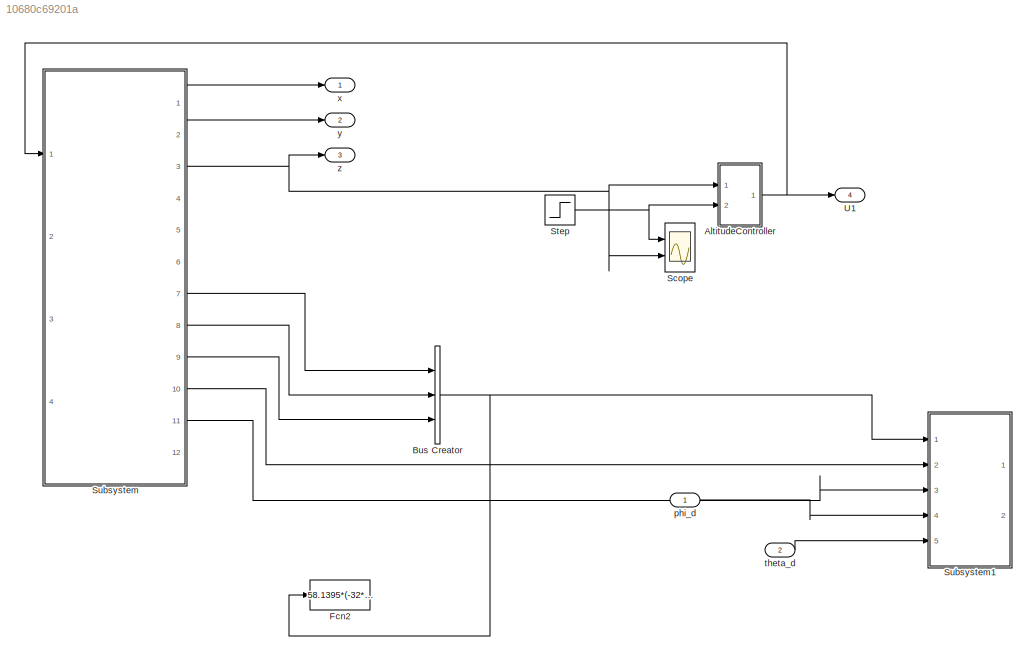
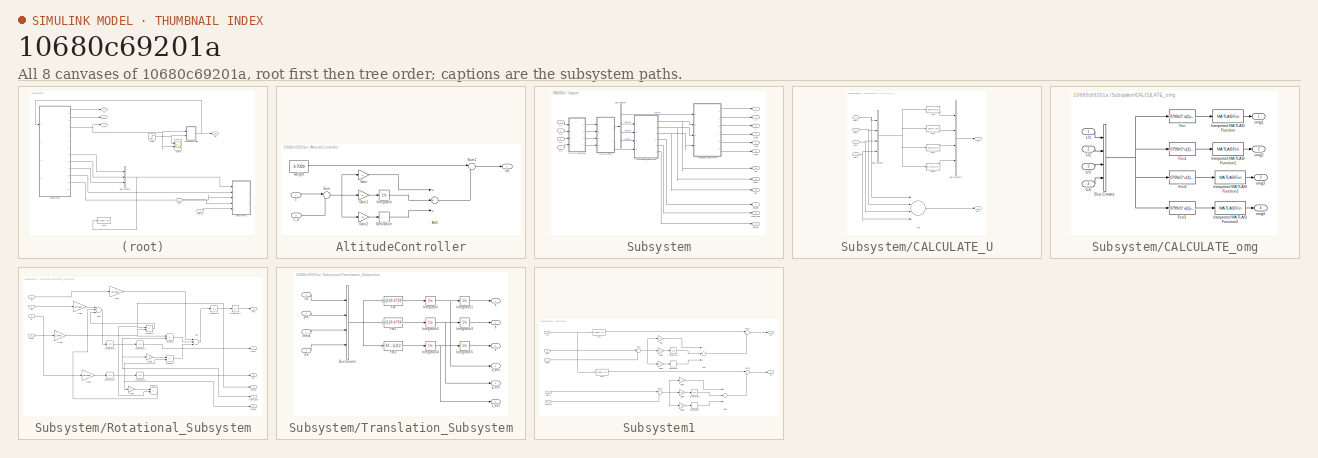
[diagram: thumbnail index - all 8 canvases of the model, root first then tree order]
MODEL slx_10680c69201a
KIND model
CONFIG AbsTol = auto
CONFIG EnableMultiTasking = off
CONFIG FixedStep = 0.0025
CONFIG MaxStep = auto
CONFIG MinStep = auto
CONFIG RelTol = 1e-3
CONFIG SampleTimeConstraint = Unconstrained
CONFIG Solver = FixedStepAuto
CONFIG SolverName = FixedStepAuto
CONFIG StartTime = 0.0
CONFIG StopTime = 10.0
BLOCK [SubSystem] AltitudeController
  Ports = [2, 1]
  RequestExecContextInheritance = off
  Variant = off
BLOCK [Sum] AltitudeController/Add
  InputSameDT = off
  Inputs = +++
  OutDataTypeStr = Inherit: Inherit via internal rule
  Ports = [3, 1]
  SaturateOnIntegerOverflow = off
BLOCK [Derivative] AltitudeController/Derivative
BLOCK [Gain] AltitudeController/Gain
  OutDataTypeStr = Inherit: Inherit via internal rule
  ParamDataTypeStr = Inherit: Inherit via internal rule
  SaturateOnIntegerOverflow = off
BLOCK [Gain] AltitudeController/Gain1
  Gain = 10
  OutDataTypeStr = Inherit: Inherit via internal rule
  ParamDataTypeStr = Inherit: Inherit via internal rule
  SaturateOnIntegerOverflow = off
BLOCK [Gain] AltitudeController/Gain2
  Gain = 10
  OutDataTypeStr = Inherit: Inherit via internal rule
  ParamDataTypeStr = Inherit: Inherit via internal rule
  SaturateOnIntegerOverflow = off
BLOCK [Integrator] AltitudeController/Integrator
  Ports = [1, 1]
BLOCK [Sum] AltitudeController/Sum
  IconShape = round
  InputSameDT = off
  Inputs = |+-
  OutDataTypeStr = Inherit: Inherit via internal rule
  Ports = [2, 1]
  SaturateOnIntegerOverflow = off
BLOCK [Sum] AltitudeController/Sum1
  IconShape = round
  InputSameDT = off
  Inputs = |++
  OutDataTypeStr = Inherit: Inherit via internal rule
  Ports = [2, 1]
  SaturateOnIntegerOverflow = off
BLOCK [Outport] AltitudeController/U1
  IconDisplay = Port number
BLOCK [Constant] AltitudeController/weight
  Value = 4.7029
BLOCK [Inport] AltitudeController/z
  IconDisplay = Port number
BLOCK [Inport] AltitudeController/z_d
  IconDisplay = Port number
  Port = 2
BLOCK [BusCreator] Bus Creator
  DisplayOption = bar
  InheritFromInputs = on
  Inputs = 3
  Ports = [3, 1]
BLOCK [Fcn] Fcn2
  Expr = 58.1395*(-32*u(3))
BLOCK [Scope] Scope
  NumInputPorts = 2
  Ports = [2]
  ScopeSpecificationString = Simulink.scopes.TimeScopeBlockCfg('CurrentConfiguration', extmgr.ConfigurationSet(extmgr.Configuration('Core','General UI',true),extmgr.Configuration('Core','Source UI',true),extmgr.Configuration('Sources','WiredSimulink',true),extmgr.Configuration('Visuals','Time Domain',true,'SerializedDisplays',{struct('MinYLimReal','-0.2406','MaxYLimReal','2.16408','YLabelReal','','MinYLimMag','0.00000','MaxYL...<+1392ch>
BLOCK [Step] Step
  SampleTime = 0
BLOCK [SubSystem] Subsystem
  Ports = [4, 12]
  RequestExecContextInheritance = off
  Variant = off
BLOCK [BusSelector] Subsystem/Bus Selector
  OutputAsBus = off
  OutputSignals = signal1,signal2,signal3,signal4
  Ports = [1, 4]
BLOCK [SubSystem] Subsystem/CALCULATE_U
  Ports = [4, 2]
  RequestExecContextInheritance = off
  Variant = off
BLOCK [Sum] Subsystem/CALCULATE_U/Add
  InputSameDT = off
  Inputs = -+-+
  OutDataTypeStr = Inherit: Inherit via internal rule
  Ports = [4, 1]
  SaturateOnIntegerOverflow = off
BLOCK [BusCreator] Subsystem/CALCULATE_U/Bus Creator
  DisplayOption = bar
  InheritFromInputs = on
  Inputs = 4
  Ports = [4, 1]
BLOCK [BusCreator] Subsystem/CALCULATE_U/Bus Creator1
  DisplayOption = bar
  InheritFromInputs = on
  Inputs = 4
  Ports = [4, 1]
BLOCK [Fcn] Subsystem/CALCULATE_U/Fcn
  Expr = 3.13e-5*(u(1)^2+u(2)^2+u(3)^2+u(4)^2)
BLOCK [Fcn] Subsystem/CALCULATE_U/Fcn1
  Expr = 3.13e-5*(-u(2)^2+u(4)^2)
BLOCK [Fcn] Subsystem/CALCULATE_U/Fcn2
  Expr = 3.13e-5*(u(1)^2-u(3)^2)
BLOCK [Fcn] Subsystem/CALCULATE_U/Fcn3
  Expr = 9e-7*(u(1)^2-u(2)^2+u(3)^2-u(4)^2)
BLOCK [Outport] Subsystem/CALCULATE_U/U
  IconDisplay = Port number
BLOCK [Inport] Subsystem/CALCULATE_U/om1
  IconDisplay = Port number
BLOCK [Inport] Subsystem/CALCULATE_U/om2
  IconDisplay = Port number
  Port = 2
BLOCK [Inport] Subsystem/CALCULATE_U/om3
  IconDisplay = Port number
  Port = 3
BLOCK [Inport] Subsystem/CALCULATE_U/om4
  IconDisplay = Port number
  Port = 4
BLOCK [Outport] Subsystem/CALCULATE_U/omr
  IconDisplay = Port number
  Port = 2
BLOCK [SubSystem] Subsystem/CALCULATE_omg
  Ports = [4, 4]
  RequestExecContextInheritance = off
  Variant = off
BLOCK [BusCreator] Subsystem/CALCULATE_omg/Bus Creator
  DisplayOption = bar
  InheritFromInputs = on
  Inputs = 4
  Ports = [4, 1]
BLOCK [Fcn] Subsystem/CALCULATE_omg/Fcn
  Expr = .0799e5*u(1)+.1597e5*u(3)+2.7778e5*u(4)
BLOCK [Fcn] Subsystem/CALCULATE_omg/Fcn1
  Expr = .0799e5*u(1)-.1597e5*u(2)-2.7778e5*u(4)
BLOCK [Fcn] Subsystem/CALCULATE_omg/Fcn2
  Expr = .0799e5*u(1)-.1597e5*u(3)+2.7778e5*u(4)
BLOCK [Fcn] Subsystem/CALCULATE_omg/Fcn3
  Expr = .0799e5*u(1)+.1597e5*u(2)-2.7778e5*u(4)
BLOCK [MATLABFcn] Subsystem/CALCULATE_omg/Interpreted MATLAB Function
  MATLABFcn = cond_sqrt
  Ports = [1, 1]
BLOCK [MATLABFcn] Subsystem/CALCULATE_omg/Interpreted MATLAB Function1
  MATLABFcn = cond_sqrt
  Ports = [1, 1]
BLOCK [MATLABFcn] Subsystem/CALCULATE_omg/Interpreted MATLAB Function2
  MATLABFcn = cond_sqrt
  Ports = [1, 1]
BLOCK [MATLABFcn] Subsystem/CALCULATE_omg/Interpreted MATLAB Function3
  MATLABFcn = cond_sqrt
  Ports = [1, 1]
BLOCK [Inport] Subsystem/CALCULATE_omg/U1
  IconDisplay = Port number
BLOCK [Inport] Subsystem/CALCULATE_omg/U2
  IconDisplay = Port number
  Port = 2
BLOCK [Inport] Subsystem/CALCULATE_omg/U3
  IconDisplay = Port number
  Port = 3
BLOCK [Inport] Subsystem/CALCULATE_omg/U4
  IconDisplay = Port number
  Port = 4
BLOCK [Outport] Subsystem/CALCULATE_omg/omg1
  IconDisplay = Port number
BLOCK [Outport] Subsystem/CALCULATE_omg/omg2
  IconDisplay = Port number
  Port = 2
BLOCK [Outport] Subsystem/CALCULATE_omg/omg3
  IconDisplay = Port number
  Port = 3
BLOCK [Outport] Subsystem/CALCULATE_omg/omg4
  IconDisplay = Port number
  Port = 4
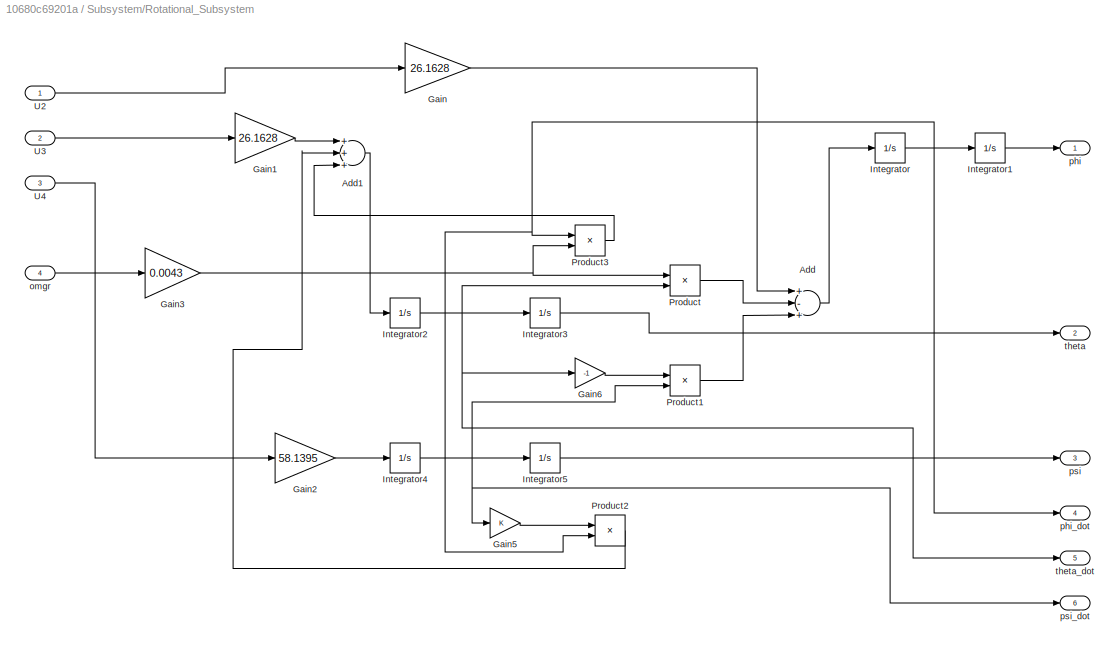
BLOCK [SubSystem] Subsystem/Rotational_Subsystem
  Ports = [4, 6]
  RequestExecContextInheritance = off
  Variant = off
BLOCK [Sum] Subsystem/Rotational_Subsystem/Add
  InputSameDT = off
  Inputs = +-+
  OutDataTypeStr = Inherit: Inherit via internal rule
  Ports = [3, 1]
  SaturateOnIntegerOverflow = off
BLOCK [Sum] Subsystem/Rotational_Subsystem/Add1
  InputSameDT = off
  Inputs = +++
  OutDataTypeStr = Inherit: Inherit via internal rule
  Ports = [3, 1]
  SaturateOnIntegerOverflow = off
BLOCK [Gain] Subsystem/Rotational_Subsystem/Gain
  Gain = 26.1628
  OutDataTypeStr = Inherit: Inherit via internal rule
  ParamDataTypeStr = Inherit: Inherit via internal rule
  SaturateOnIntegerOverflow = off
BLOCK [Gain] Subsystem/Rotational_Subsystem/Gain1
  Gain = 26.1628
  OutDataTypeStr = Inherit: Inherit via internal rule
  ParamDataTypeStr = Inherit: Inherit via internal rule
  SaturateOnIntegerOverflow = off
BLOCK [Gain] Subsystem/Rotational_Subsystem/Gain2
  Gain = 58.1395
  OutDataTypeStr = Inherit: Inherit via internal rule
  ParamDataTypeStr = Inherit: Inherit via internal rule
  SaturateOnIntegerOverflow = off
BLOCK [Gain] Subsystem/Rotational_Subsystem/Gain3
  Gain = 0.0043
  OutDataTypeStr = Inherit: Inherit via internal rule
  ParamDataTypeStr = Inherit: Inherit via internal rule
  SaturateOnIntegerOverflow = off
BLOCK [Gain] Subsystem/Rotational_Subsystem/Gain5
  OutDataTypeStr = Inherit: Inherit via internal rule
  ParamDataTypeStr = Inherit: Inherit via internal rule
  SaturateOnIntegerOverflow = off
BLOCK [Gain] Subsystem/Rotational_Subsystem/Gain6
  Gain = -1
  OutDataTypeStr = Inherit: Inherit via internal rule
  ParamDataTypeStr = Inherit: Inherit via internal rule
  SaturateOnIntegerOverflow = off
BLOCK [Integrator] Subsystem/Rotational_Subsystem/Integrator
  Ports = [1, 1]
BLOCK [Integrator] Subsystem/Rotational_Subsystem/Integrator1
  Ports = [1, 1]
BLOCK [Integrator] Subsystem/Rotational_Subsystem/Integrator2
  Ports = [1, 1]
BLOCK [Integrator] Subsystem/Rotational_Subsystem/Integrator3
  Ports = [1, 1]
BLOCK [Integrator] Subsystem/Rotational_Subsystem/Integrator4
  Ports = [1, 1]
BLOCK [Integrator] Subsystem/Rotational_Subsystem/Integrator5
  Ports = [1, 1]
BLOCK [Product] Subsystem/Rotational_Subsystem/Product
  InputSameDT = off
  OutDataTypeStr = Inherit: Inherit via internal rule
  Ports = [2, 1]
  RndMeth = Floor
  SaturateOnIntegerOverflow = off
BLOCK [Product] Subsystem/Rotational_Subsystem/Product1
  InputSameDT = off
  OutDataTypeStr = Inherit: Inherit via internal rule
  Ports = [2, 1]
  RndMeth = Floor
  SaturateOnIntegerOverflow = off
BLOCK [Product] Subsystem/Rotational_Subsystem/Product2
  InputSameDT = off
  OutDataTypeStr = Inherit: Inherit via internal rule
  Ports = [2, 1]
  RndMeth = Floor
  SaturateOnIntegerOverflow = off
BLOCK [Product] Subsystem/Rotational_Subsystem/Product3
  InputSameDT = off
  OutDataTypeStr = Inherit: Inherit via internal rule
  Ports = [2, 1]
  RndMeth = Floor
  SaturateOnIntegerOverflow = off
BLOCK [Inport] Subsystem/Rotational_Subsystem/U2
  IconDisplay = Port number
BLOCK [Inport] Subsystem/Rotational_Subsystem/U3
  IconDisplay = Port number
  Port = 2
BLOCK [Inport] Subsystem/Rotational_Subsystem/U4
  IconDisplay = Port number
  Port = 3
BLOCK [Inport] Subsystem/Rotational_Subsystem/omgr
  IconDisplay = Port number
  Port = 4
BLOCK [Outport] Subsystem/Rotational_Subsystem/phi
  IconDisplay = Port number
BLOCK [Outport] Subsystem/Rotational_Subsystem/phi_dot
  IconDisplay = Port number
  Port = 4
BLOCK [Outport] Subsystem/Rotational_Subsystem/psi
  IconDisplay = Port number
  Port = 3
BLOCK [Outport] Subsystem/Rotational_Subsystem/psi_dot
  IconDisplay = Port number
  Port = 6
BLOCK [Outport] Subsystem/Rotational_Subsystem/theta
  IconDisplay = Port number
  Port = 2
BLOCK [Outport] Subsystem/Rotational_Subsystem/theta_dot
  IconDisplay = Port number
  Port = 5
BLOCK [SubSystem] Subsystem/Translation_Subsystem
  Ports = [4, 6]
  RequestExecContextInheritance = off
  Variant = off
BLOCK [BusCreator] Subsystem/Translation_Subsystem/Bus Creator
  DisplayOption = bar
  InheritFromInputs = on
  Inputs = 4
  Ports = [4, 1]
BLOCK [Fcn] Subsystem/Translation_Subsystem/Fcn
  Expr = (-u(1)/0.4794)*(cos(u(2))*sin(u(3))*cos(u(4)) + sin(u(2))*sin(u(4)))
BLOCK [Fcn] Subsystem/Translation_Subsystem/Fcn1
  Expr = (-u(1)/0.4794)*(cos(u(2))*sin(u(3))*sin(u(4)) - sin(u(2))*cos(u(4)))
BLOCK [Fcn] Subsystem/Translation_Subsystem/Fcn2
  Expr = 9.81 - (u(1)/0.4794)*(cos(u(2))*cos(u(3)))
BLOCK [Integrator] Subsystem/Translation_Subsystem/Integrator
  Ports = [1, 1]
BLOCK [Integrator] Subsystem/Translation_Subsystem/Integrator1
  Ports = [1, 1]
BLOCK [Integrator] Subsystem/Translation_Subsystem/Integrator2
  Ports = [1, 1]
BLOCK [Integrator] Subsystem/Translation_Subsystem/Integrator3
  Ports = [1, 1]
BLOCK [Integrator] Subsystem/Translation_Subsystem/Integrator4
  Ports = [1, 1]
BLOCK [Integrator] Subsystem/Translation_Subsystem/Integrator5
  Ports = [1, 1]
BLOCK [Inport] Subsystem/Translation_Subsystem/U1
  IconDisplay = Port number
BLOCK [Inport] Subsystem/Translation_Subsystem/phi
  IconDisplay = Port number
  Port = 2
BLOCK [Inport] Subsystem/Translation_Subsystem/psi
  IconDisplay = Port number
  Port = 4
BLOCK [Inport] Subsystem/Translation_Subsystem/theta
  IconDisplay = Port number
  Port = 3
BLOCK [Outport] Subsystem/Translation_Subsystem/x
  IconDisplay = Port number
BLOCK [Outport] Subsystem/Translation_Subsystem/x_dot
  IconDisplay = Port number
  Port = 4
BLOCK [Outport] Subsystem/Translation_Subsystem/y
  IconDisplay = Port number
  Port = 2
BLOCK [Outport] Subsystem/Translation_Subsystem/y_dot
  IconDisplay = Port number
  Port = 5
BLOCK [Outport] Subsystem/Translation_Subsystem/z
  IconDisplay = Port number
  Port = 3
BLOCK [Outport] Subsystem/Translation_Subsystem/z_dot
  IconDisplay = Port number
  Port = 6
BLOCK [Inport] Subsystem/U1
  IconDisplay = Port number
BLOCK [Inport] Subsystem/U2
  IconDisplay = Port number
  Port = 2
BLOCK [Inport] Subsystem/U3
  IconDisplay = Port number
  Port = 3
BLOCK [Inport] Subsystem/U4
  IconDisplay = Port number
  Port = 4
BLOCK [Outport] Subsystem/phi
  IconDisplay = Port number
  Port = 10
BLOCK [Outport] Subsystem/phi_dot
  IconDisplay = Port number
  Port = 7
BLOCK [Outport] Subsystem/psi
  IconDisplay = Port number
  Port = 12
BLOCK [Outport] Subsystem/psi_dot
  IconDisplay = Port number
  Port = 9
BLOCK [Outport] Subsystem/theta
  IconDisplay = Port number
  Port = 11
BLOCK [Outport] Subsystem/theta_dot
  IconDisplay = Port number
  Port = 8
BLOCK [Outport] Subsystem/x
  IconDisplay = Port number
BLOCK [Outport] Subsystem/x_dot
  IconDisplay = Port number
  Port = 4
BLOCK [Outport] Subsystem/y
  IconDisplay = Port number
  Port = 2
BLOCK [Outport] Subsystem/y_dot
  IconDisplay = Port number
  Port = 5
BLOCK [Outport] Subsystem/z
  IconDisplay = Port number
  Port = 3
BLOCK [Outport] Subsystem/z_dot
  IconDisplay = Port number
  Port = 6
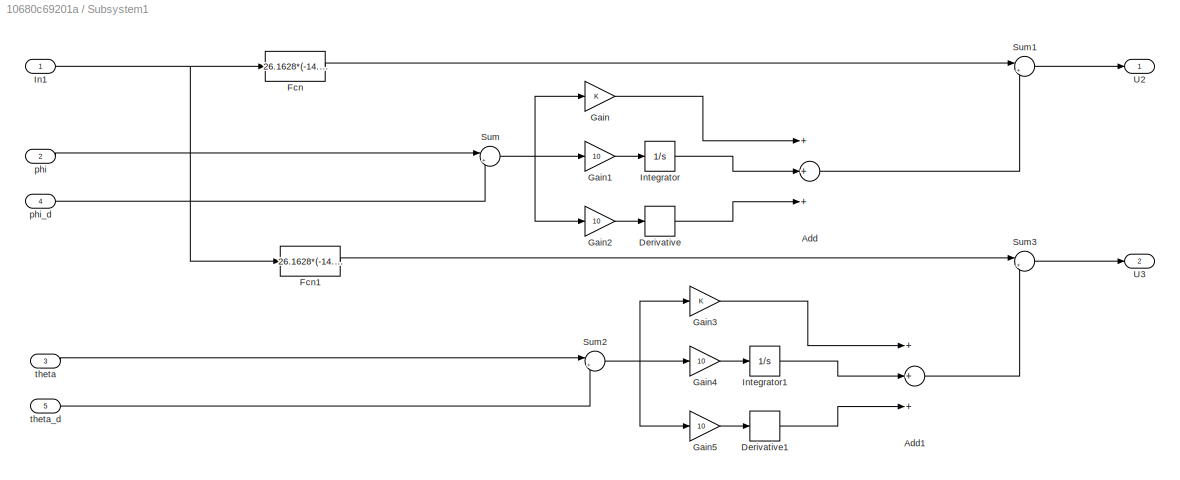
BLOCK [SubSystem] Subsystem1
  Ports = [5, 2]
  RequestExecContextInheritance = off
  Variant = off
BLOCK [Sum] Subsystem1/Add
  InputSameDT = off
  Inputs = +++
  OutDataTypeStr = Inherit: Inherit via internal rule
  Ports = [3, 1]
  SaturateOnIntegerOverflow = off
BLOCK [Sum] Subsystem1/Add1
  InputSameDT = off
  Inputs = +++
  OutDataTypeStr = Inherit: Inherit via internal rule
  Ports = [3, 1]
  SaturateOnIntegerOverflow = off
BLOCK [Derivative] Subsystem1/Derivative
BLOCK [Derivative] Subsystem1/Derivative1
BLOCK [Fcn] Subsystem1/Fcn
  Expr = 26.1628*(-14.6211*u(1) + u(2)*u(3))
BLOCK [Fcn] Subsystem1/Fcn1
  Expr = 26.1628*(-14.6211*u(2) - u(1)*u(3))
BLOCK [Gain] Subsystem1/Gain
  OutDataTypeStr = Inherit: Inherit via internal rule
  ParamDataTypeStr = Inherit: Inherit via internal rule
  SaturateOnIntegerOverflow = off
BLOCK [Gain] Subsystem1/Gain1
  Gain = 10
  OutDataTypeStr = Inherit: Inherit via internal rule
  ParamDataTypeStr = Inherit: Inherit via internal rule
  SaturateOnIntegerOverflow = off
BLOCK [Gain] Subsystem1/Gain2
  Gain = 10
  OutDataTypeStr = Inherit: Inherit via internal rule
  ParamDataTypeStr = Inherit: Inherit via internal rule
  SaturateOnIntegerOverflow = off
BLOCK [Gain] Subsystem1/Gain3
  OutDataTypeStr = Inherit: Inherit via internal rule
  ParamDataTypeStr = Inherit: Inherit via internal rule
  SaturateOnIntegerOverflow = off
BLOCK [Gain] Subsystem1/Gain4
  Gain = 10
  OutDataTypeStr = Inherit: Inherit via internal rule
  ParamDataTypeStr = Inherit: Inherit via internal rule
  SaturateOnIntegerOverflow = off
BLOCK [Gain] Subsystem1/Gain5
  Gain = 10
  OutDataTypeStr = Inherit: Inherit via internal rule
  ParamDataTypeStr = Inherit: Inherit via internal rule
  SaturateOnIntegerOverflow = off
BLOCK [Inport] Subsystem1/In1
  IconDisplay = Port number
BLOCK [Integrator] Subsystem1/Integrator
  Ports = [1, 1]
BLOCK [Integrator] Subsystem1/Integrator1
  Ports = [1, 1]
BLOCK [Sum] Subsystem1/Sum
  IconShape = round
  InputSameDT = off
  Inputs = |+-
  OutDataTypeStr = Inherit: Inherit via internal rule
  Ports = [2, 1]
  SaturateOnIntegerOverflow = off
BLOCK [Sum] Subsystem1/Sum1
  IconShape = round
  InputSameDT = off
  Inputs = |++
  OutDataTypeStr = Inherit: Inherit via internal rule
  Ports = [2, 1]
  SaturateOnIntegerOverflow = off
BLOCK [Sum] Subsystem1/Sum2
  IconShape = round
  InputSameDT = off
  Inputs = |+-
  OutDataTypeStr = Inherit: Inherit via internal rule
  Ports = [2, 1]
  SaturateOnIntegerOverflow = off
BLOCK [Sum] Subsystem1/Sum3
  IconShape = round
  InputSameDT = off
  Inputs = |++
  OutDataTypeStr = Inherit: Inherit via internal rule
  Ports = [2, 1]
  SaturateOnIntegerOverflow = off
BLOCK [Outport] Subsystem1/U2
  IconDisplay = Port number
BLOCK [Outport] Subsystem1/U3
  IconDisplay = Port number
  Port = 2
BLOCK [Inport] Subsystem1/phi
  IconDisplay = Port number
  Port = 2
BLOCK [Inport] Subsystem1/phi_d
  IconDisplay = Port number
  Port = 4
BLOCK [Inport] Subsystem1/theta
  IconDisplay = Port number
  Port = 3
BLOCK [Inport] Subsystem1/theta_d
  IconDisplay = Port number
  Port = 5
BLOCK [Outport] U1
  IconDisplay = Port number
  Port = 4
BLOCK [Inport] phi_d
  IconDisplay = Port number
BLOCK [Inport] theta_d
  IconDisplay = Port number
  Port = 2
BLOCK [Outport] x
  IconDisplay = Port number
BLOCK [Outport] y
  IconDisplay = Port number
  Port = 2
BLOCK [Outport] z
  IconDisplay = Port number
  Port = 3
LINE AltitudeController/Add:1 -> AltitudeController/Sum1:2
LINE AltitudeController/Derivative:1 -> AltitudeController/Add:3
LINE AltitudeController/Gain1:1 -> AltitudeController/Integrator:1
LINE AltitudeController/Gain2:1 -> AltitudeController/Derivative:1
LINE AltitudeController/Gain:1 -> AltitudeController/Add:1
LINE AltitudeController/Integrator:1 -> AltitudeController/Add:2
LINE AltitudeController/Sum1:1 -> AltitudeController/U1:1
NET AltitudeController/Sum:1 -> AltitudeController/Gain1:1, AltitudeController/Gain2:1, AltitudeController/Gain:1
LINE AltitudeController/weight:1 -> AltitudeController/Sum1:1
LINE AltitudeController/z:1 -> AltitudeController/Sum:1
LINE AltitudeController/z_d:1 -> AltitudeController/Sum:2
NET AltitudeController:1 -> Subsystem:1, U1:1
NET Bus Creator:1 -> Fcn2:1, Subsystem1:1
NET Step:1 -> AltitudeController:2, Scope:1
LINE Subsystem/Bus Selector:1 -> Subsystem/Translation_Subsystem:1
LINE Subsystem/Bus Selector:2 -> Subsystem/Rotational_Subsystem:1
LINE Subsystem/Bus Selector:3 -> Subsystem/Rotational_Subsystem:2
LINE Subsystem/Bus Selector:4 -> Subsystem/Rotational_Subsystem:3
LINE Subsystem/CALCULATE_U/Add:1 -> Subsystem/CALCULATE_U/omr:1
LINE Subsystem/CALCULATE_U/Bus Creator1:1 -> Subsystem/CALCULATE_U/U:1
NET Subsystem/CALCULATE_U/Bus Creator:1 -> Subsystem/CALCULATE_U/Fcn1:1, Subsystem/CALCULATE_U/Fcn2:1, Subsystem/CALCULATE_U/Fcn3:1, Subsystem/CALCULATE_U/Fcn:1
LINE Subsystem/CALCULATE_U/Fcn1:1 -> Subsystem/CALCULATE_U/Bus Creator1:2
LINE Subsystem/CALCULATE_U/Fcn2:1 -> Subsystem/CALCULATE_U/Bus Creator1:3
LINE Subsystem/CALCULATE_U/Fcn3:1 -> Subsystem/CALCULATE_U/Bus Creator1:4
LINE Subsystem/CALCULATE_U/Fcn:1 -> Subsystem/CALCULATE_U/Bus Creator1:1
NET Subsystem/CALCULATE_U/om1:1 -> Subsystem/CALCULATE_U/Add:1, Subsystem/CALCULATE_U/Bus Creator:1
NET Subsystem/CALCULATE_U/om2:1 -> Subsystem/CALCULATE_U/Add:2, Subsystem/CALCULATE_U/Bus Creator:2
NET Subsystem/CALCULATE_U/om3:1 -> Subsystem/CALCULATE_U/Add:3, Subsystem/CALCULATE_U/Bus Creator:3
NET Subsystem/CALCULATE_U/om4:1 -> Subsystem/CALCULATE_U/Add:4, Subsystem/CALCULATE_U/Bus Creator:4
LINE Subsystem/CALCULATE_U:1 -> Subsystem/Bus Selector:1
LINE Subsystem/CALCULATE_U:2 -> Subsystem/Rotational_Subsystem:4
NET Subsystem/CALCULATE_omg/Bus Creator:1 -> Subsystem/CALCULATE_omg/Fcn1:1, Subsystem/CALCULATE_omg/Fcn2:1, Subsystem/CALCULATE_omg/Fcn3:1, Subsystem/CALCULATE_omg/Fcn:1
LINE Subsystem/CALCULATE_omg/Fcn1:1 -> Subsystem/CALCULATE_omg/Interpreted MATLAB Function1:1
LINE Subsystem/CALCULATE_omg/Fcn2:1 -> Subsystem/CALCULATE_omg/Interpreted MATLAB Function2:1
LINE Subsystem/CALCULATE_omg/Fcn3:1 -> Subsystem/CALCULATE_omg/Interpreted MATLAB Function3:1
LINE Subsystem/CALCULATE_omg/Fcn:1 -> Subsystem/CALCULATE_omg/Interpreted MATLAB Function:1
LINE Subsystem/CALCULATE_omg/Interpreted MATLAB Function1:1 -> Subsystem/CALCULATE_omg/omg2:1
LINE Subsystem/CALCULATE_omg/Interpreted MATLAB Function2:1 -> Subsystem/CALCULATE_omg/omg3:1
LINE Subsystem/CALCULATE_omg/Interpreted MATLAB Function3:1 -> Subsystem/CALCULATE_omg/omg4:1
LINE Subsystem/CALCULATE_omg/Interpreted MATLAB Function:1 -> Subsystem/CALCULATE_omg/omg1:1
LINE Subsystem/CALCULATE_omg/U1:1 -> Subsystem/CALCULATE_omg/Bus Creator:1
LINE Subsystem/CALCULATE_omg/U2:1 -> Subsystem/CALCULATE_omg/Bus Creator:2
LINE Subsystem/CALCULATE_omg/U3:1 -> Subsystem/CALCULATE_omg/Bus Creator:3
LINE Subsystem/CALCULATE_omg/U4:1 -> Subsystem/CALCULATE_omg/Bus Creator:4
LINE Subsystem/CALCULATE_omg:1 -> Subsystem/CALCULATE_U:1
LINE Subsystem/CALCULATE_omg:2 -> Subsystem/CALCULATE_U:2
LINE Subsystem/CALCULATE_omg:3 -> Subsystem/CALCULATE_U:3
LINE Subsystem/CALCULATE_omg:4 -> Subsystem/CALCULATE_U:4
LINE Subsystem/Rotational_Subsystem/Add1:1 -> Subsystem/Rotational_Subsystem/Integrator2:1
LINE Subsystem/Rotational_Subsystem/Add:1 -> Subsystem/Rotational_Subsystem/Integrator:1
LINE Subsystem/Rotational_Subsystem/Gain1:1 -> Subsystem/Rotational_Subsystem/Add1:1
LINE Subsystem/Rotational_Subsystem/Gain2:1 -> Subsystem/Rotational_Subsystem/Integrator4:1
NET Subsystem/Rotational_Subsystem/Gain3:1 -> Subsystem/Rotational_Subsystem/Product3:2, Subsystem/Rotational_Subsystem/Product:1
LINE Subsystem/Rotational_Subsystem/Gain5:1 -> Subsystem/Rotational_Subsystem/Product2:1
LINE Subsystem/Rotational_Subsystem/Gain6:1 -> Subsystem/Rotational_Subsystem/Product1:1
LINE Subsystem/Rotational_Subsystem/Gain:1 -> Subsystem/Rotational_Subsystem/Add:1
LINE Subsystem/Rotational_Subsystem/Integrator1:1 -> Subsystem/Rotational_Subsystem/phi:1
NET Subsystem/Rotational_Subsystem/Integrator2:1 -> Subsystem/Rotational_Subsystem/Gain6:1, Subsystem/Rotational_Subsystem/Integrator3:1, Subsystem/Rotational_Subsystem/Product:2, Subsystem/Rotational_Subsystem/theta_dot:1
LINE Subsystem/Rotational_Subsystem/Integrator3:1 -> Subsystem/Rotational_Subsystem/theta:1
NET Subsystem/Rotational_Subsystem/Integrator4:1 -> Subsystem/Rotational_Subsystem/Gain5:1, Subsystem/Rotational_Subsystem/Integrator5:1, Subsystem/Rotational_Subsystem/Product1:2, Subsystem/Rotational_Subsystem/psi_dot:1
LINE Subsystem/Rotational_Subsystem/Integrator5:1 -> Subsystem/Rotational_Subsystem/psi:1
NET Subsystem/Rotational_Subsystem/Integrator:1 -> Subsystem/Rotational_Subsystem/Integrator1:1, Subsystem/Rotational_Subsystem/Product2:2, Subsystem/Rotational_Subsystem/Product3:1, Subsystem/Rotational_Subsystem/phi_dot:1
LINE Subsystem/Rotational_Subsystem/Product1:1 -> Subsystem/Rotational_Subsystem/Add:3
LINE Subsystem/Rotational_Subsystem/Product2:1 -> Subsystem/Rotational_Subsystem/Add1:2
LINE Subsystem/Rotational_Subsystem/Product3:1 -> Subsystem/Rotational_Subsystem/Add1:3
LINE Subsystem/Rotational_Subsystem/Product:1 -> Subsystem/Rotational_Subsystem/Add:2
LINE Subsystem/Rotational_Subsystem/U2:1 -> Subsystem/Rotational_Subsystem/Gain:1
LINE Subsystem/Rotational_Subsystem/U3:1 -> Subsystem/Rotational_Subsystem/Gain1:1
LINE Subsystem/Rotational_Subsystem/U4:1 -> Subsystem/Rotational_Subsystem/Gain2:1
LINE Subsystem/Rotational_Subsystem/omgr:1 -> Subsystem/Rotational_Subsystem/Gain3:1
NET Subsystem/Rotational_Subsystem:1 -> Subsystem/Translation_Subsystem:2, Subsystem/phi:1
NET Subsystem/Rotational_Subsystem:2 -> Subsystem/Translation_Subsystem:3, Subsystem/theta:1
NET Subsystem/Rotational_Subsystem:3 -> Subsystem/Translation_Subsystem:4, Subsystem/psi:1
LINE Subsystem/Rotational_Subsystem:4 -> Subsystem/phi_dot:1
LINE Subsystem/Rotational_Subsystem:5 -> Subsystem/theta_dot:1
LINE Subsystem/Rotational_Subsystem:6 -> Subsystem/psi_dot:1
NET Subsystem/Translation_Subsystem/Bus Creator:1 -> Subsystem/Translation_Subsystem/Fcn1:1, Subsystem/Translation_Subsystem/Fcn2:1, Subsystem/Translation_Subsystem/Fcn:1
LINE Subsystem/Translation_Subsystem/Fcn1:1 -> Subsystem/Translation_Subsystem/Integrator2:1
LINE Subsystem/Translation_Subsystem/Fcn2:1 -> Subsystem/Translation_Subsystem/Integrator4:1
LINE Subsystem/Translation_Subsystem/Fcn:1 -> Subsystem/Translation_Subsystem/Integrator:1
LINE Subsystem/Translation_Subsystem/Integrator1:1 -> Subsystem/Translation_Subsystem/x:1
NET Subsystem/Translation_Subsystem/Integrator2:1 -> Subsystem/Translation_Subsystem/Integrator3:1, Subsystem/Translation_Subsystem/y_dot:1
LINE Subsystem/Translation_Subsystem/Integrator3:1 -> Subsystem/Translation_Subsystem/y:1
NET Subsystem/Translation_Subsystem/Integrator4:1 -> Subsystem/Translation_Subsystem/Integrator5:1, Subsystem/Translation_Subsystem/z_dot:1
LINE Subsystem/Translation_Subsystem/Integrator5:1 -> Subsystem/Translation_Subsystem/z:1
NET Subsystem/Translation_Subsystem/Integrator:1 -> Subsystem/Translation_Subsystem/Integrator1:1, Subsystem/Translation_Subsystem/x_dot:1
LINE Subsystem/Translation_Subsystem/U1:1 -> Subsystem/Translation_Subsystem/Bus Creator:1
LINE Subsystem/Translation_Subsystem/phi:1 -> Subsystem/Translation_Subsystem/Bus Creator:2
LINE Subsystem/Translation_Subsystem/psi:1 -> Subsystem/Translation_Subsystem/Bus Creator:4
LINE Subsystem/Translation_Subsystem/theta:1 -> Subsystem/Translation_Subsystem/Bus Creator:3
LINE Subsystem/Translation_Subsystem:1 -> Subsystem/x:1
LINE Subsystem/Translation_Subsystem:2 -> Subsystem/y:1
LINE Subsystem/Translation_Subsystem:3 -> Subsystem/z:1
LINE Subsystem/Translation_Subsystem:4 -> Subsystem/x_dot:1
LINE Subsystem/Translation_Subsystem:5 -> Subsystem/y_dot:1
LINE Subsystem/Translation_Subsystem:6 -> Subsystem/z_dot:1
LINE Subsystem/U1:1 -> Subsystem/CALCULATE_omg:1
LINE Subsystem/U2:1 -> Subsystem/CALCULATE_omg:2
LINE Subsystem/U3:1 -> Subsystem/CALCULATE_omg:3
LINE Subsystem/U4:1 -> Subsystem/CALCULATE_omg:4
LINE Subsystem1/Add1:1 -> Subsystem1/Sum3:2
LINE Subsystem1/Add:1 -> Subsystem1/Sum1:2
LINE Subsystem1/Derivative1:1 -> Subsystem1/Add1:3
LINE Subsystem1/Derivative:1 -> Subsystem1/Add:3
LINE Subsystem1/Fcn1:1 -> Subsystem1/Sum3:1
LINE Subsystem1/Fcn:1 -> Subsystem1/Sum1:1
LINE Subsystem1/Gain1:1 -> Subsystem1/Integrator:1
LINE Subsystem1/Gain2:1 -> Subsystem1/Derivative:1
LINE Subsystem1/Gain3:1 -> Subsystem1/Add1:1
LINE Subsystem1/Gain4:1 -> Subsystem1/Integrator1:1
LINE Subsystem1/Gain5:1 -> Subsystem1/Derivative1:1
LINE Subsystem1/Gain:1 -> Subsystem1/Add:1
NET Subsystem1/In1:1 -> Subsystem1/Fcn1:1, Subsystem1/Fcn:1
LINE Subsystem1/Integrator1:1 -> Subsystem1/Add1:2
LINE Subsystem1/Integrator:1 -> Subsystem1/Add:2
LINE Subsystem1/Sum1:1 -> Subsystem1/U2:1
NET Subsystem1/Sum2:1 -> Subsystem1/Gain3:1, Subsystem1/Gain4:1, Subsystem1/Gain5:1
LINE Subsystem1/Sum3:1 -> Subsystem1/U3:1
NET Subsystem1/Sum:1 -> Subsystem1/Gain1:1, Subsystem1/Gain2:1, Subsystem1/Gain:1
LINE Subsystem1/phi:1 -> Subsystem1/Sum:1
LINE Subsystem1/phi_d:1 -> Subsystem1/Sum:2
LINE Subsystem1/theta:1 -> Subsystem1/Sum2:1
LINE Subsystem1/theta_d:1 -> Subsystem1/Sum2:2
LINE Subsystem:1 -> x:1
LINE Subsystem:10 -> Subsystem1:2
LINE Subsystem:11 -> Subsystem1:3
LINE Subsystem:2 -> y:1
NET Subsystem:3 -> AltitudeController:1, Scope:2, z:1
LINE Subsystem:7 -> Bus Creator:1
LINE Subsystem:8 -> Bus Creator:2
LINE Subsystem:9 -> Bus Creator:3
LINE phi_d:1 -> Subsystem1:4
LINE theta_d:1 -> Subsystem1:5
note: NET lines group one-source signal fan-out (src -> all destinations, sorted); 1:1 wires keep LINE
